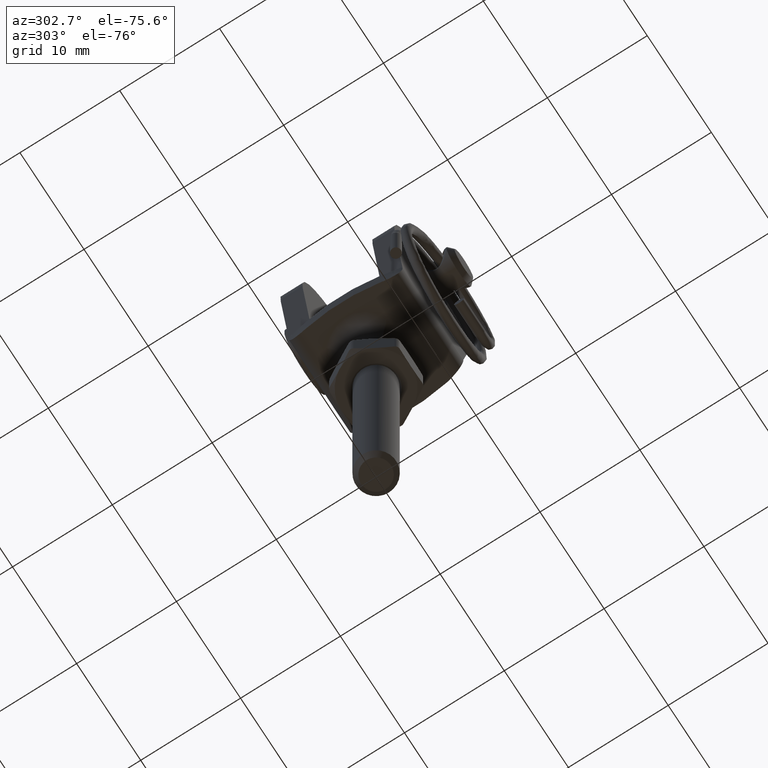
[diagram: clean part render]
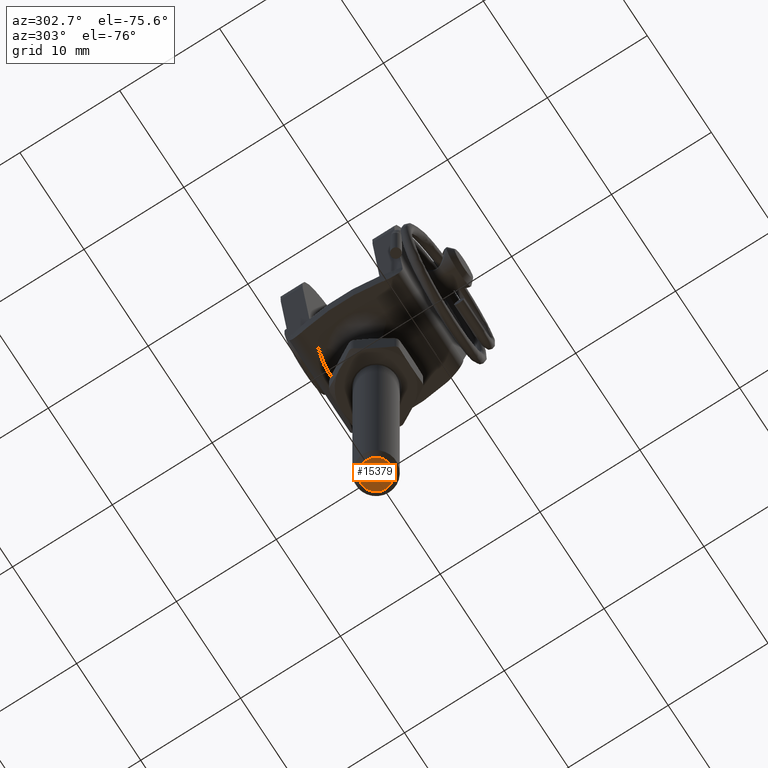
[diagram: same view with one face highlighted and labeled with its STEP entity id]
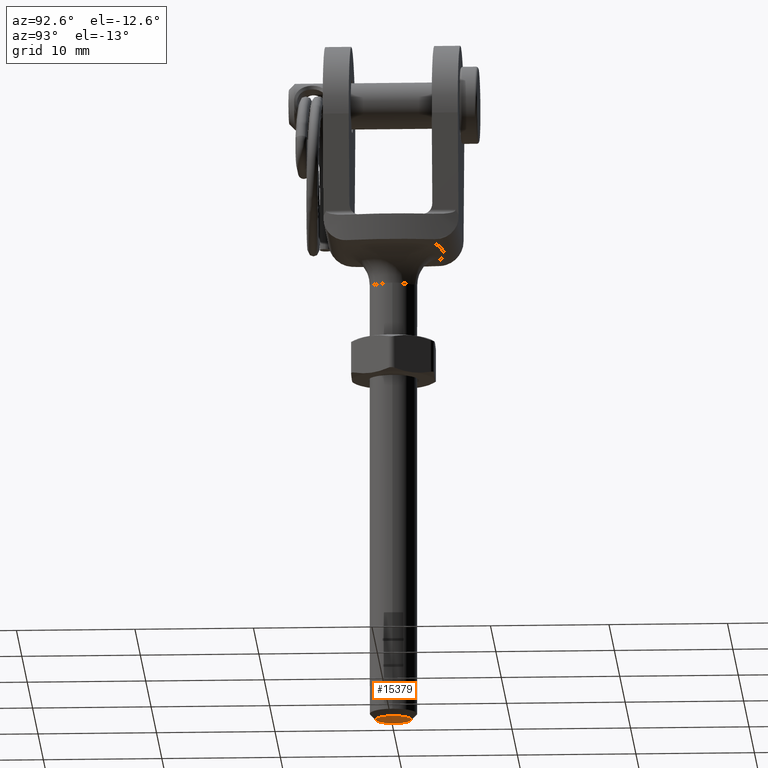
[diagram: same view with one face highlighted and labeled with its STEP entity id]
A machine part, auxiliary view. The second image highlights one B-rep face of the part: STEP entity #15379.
A second angle (auxiliary view) of the same face is appended — the face is thin or edge-on in the first view.
In plain terms, the highlighted planar face has unit normal (0, 0, 1).
Its self-contained STEP definition (entity closure, byte-faithful):
#1173 = DIRECTION ( 'NONE',  ( -0.000000000000000000, -0.000000000000000000, -1.000000000000000000 ) ) ;
#1366 = CARTESIAN_POINT ( 'NONE',  ( 0.000000000000000000, 0.000000000000000000, -42.50000000000000000 ) ) ;
#1871 = EDGE_CURVE ( 'NONE', #13956, #13956, #5614, .T. ) ;
#5614 = CIRCLE ( 'NONE', #13812, 1.500000000000008216 ) ;
#6423 = ORIENTED_EDGE ( 'NONE', *, *, #1871, .T. ) ;
#6469 = FACE_OUTER_BOUND ( 'NONE', #8665, .T. ) ;
#8080 = PLANE ( 'NONE',  #19891 ) ;
#8665 = EDGE_LOOP ( 'NONE', ( #6423 ) ) ;
#9677 = DIRECTION ( 'NONE',  ( 1.000000000000000000, 0.000000000000000000, -0.000000000000000000 ) ) ;
#12914 = DIRECTION ( 'NONE',  ( 0.000000000000000000, 0.000000000000000000, 1.000000000000000000 ) ) ;
#12986 = CARTESIAN_POINT ( 'NONE',  ( 0.000000000000000000, 0.000000000000000000, -42.50000000000000000 ) ) ;
#13812 = AXIS2_PLACEMENT_3D ( 'NONE', #1366, #1173, #15127 ) ;
#13956 = VERTEX_POINT ( 'NONE', #15166 ) ;
#15127 = DIRECTION ( 'NONE',  ( 1.000000000000000000, 0.000000000000000000, 0.000000000000000000 ) ) ;
#15166 = CARTESIAN_POINT ( 'NONE',  ( 1.500000000000008216, 0.000000000000000000, -42.50000000000000000 ) ) ;
#15379 = ADVANCED_FACE ( 'NONE', ( #6469 ), #8080, .F. ) ;
#19891 = AXIS2_PLACEMENT_3D ( 'NONE', #12986, #12914, #9677 ) ;